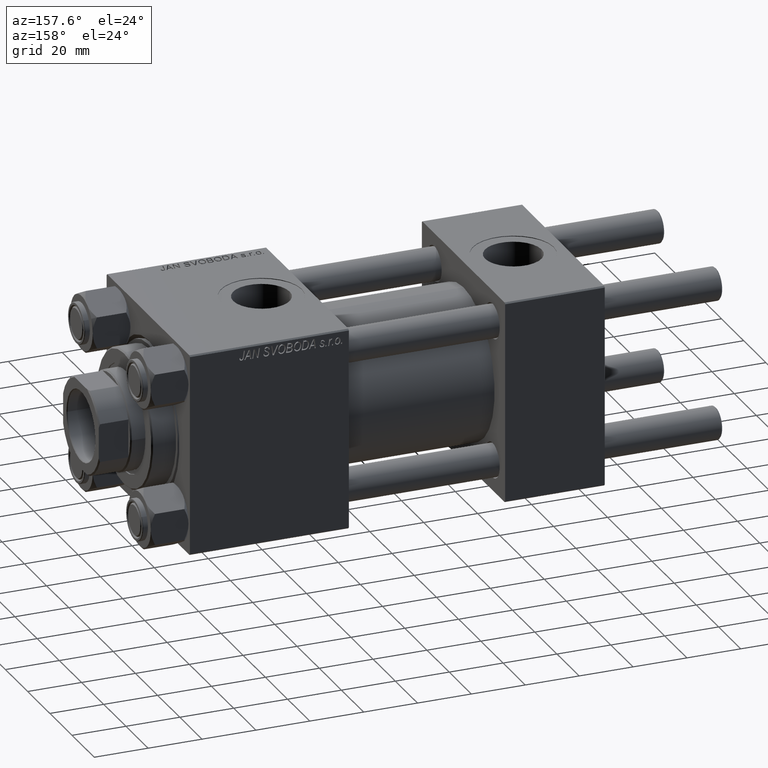
[diagram: clean part render]
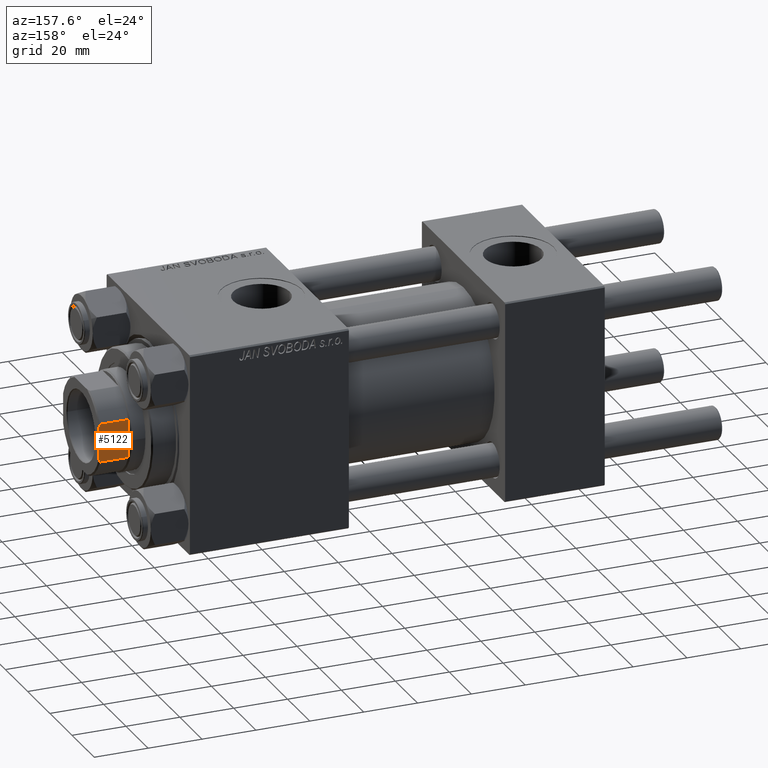
[diagram: same view with one face highlighted and labeled with its STEP entity id]
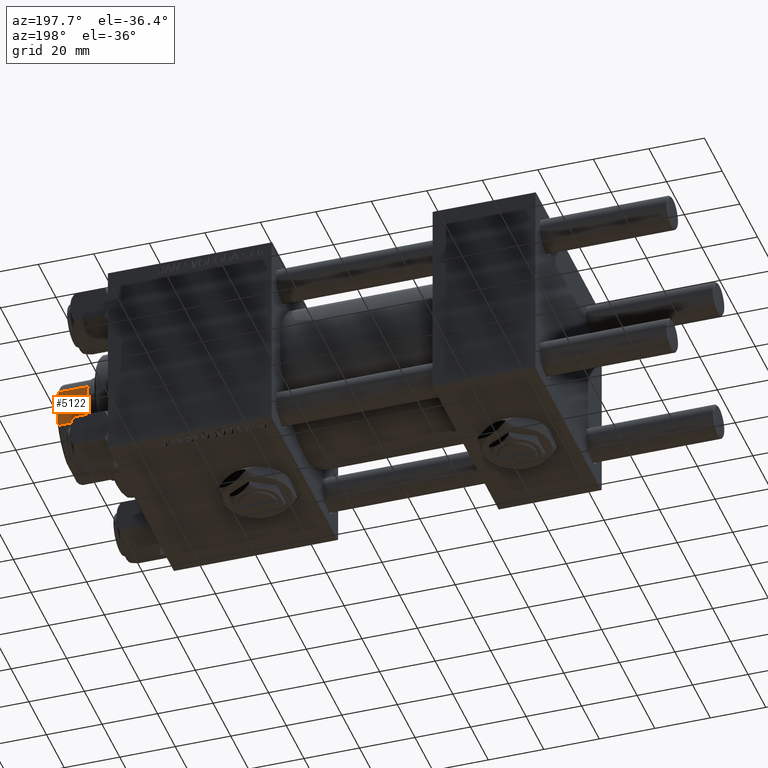
[diagram: same view with one face highlighted and labeled with its STEP entity id]
A machine part, auxiliary view. The second image highlights one B-rep face of the part: STEP entity #5122.
A second angle (auxiliary view) of the same face is appended — the face is thin or edge-on in the first view.
In plain terms, the highlighted planar face has unit normal (-0, -1, -0).
Its self-contained STEP definition (entity closure, byte-faithful):
#66 = ORIENTED_EDGE ( 'NONE', *, *, #37436, .T. ) ;
#587 = EDGE_CURVE ( 'NONE', #30240, #14228, #47034, .T. ) ;
#1814 = CARTESIAN_POINT ( 'NONE',  ( -15.99999999999999645, 7.088723439378923352, 141.5000000000000284 ) ) ;
#2242 = CARTESIAN_POINT ( 'NONE',  ( -16.00000000000000000, 16.00000000000000000, 131.0000000000000000 ) ) ;
#2921 = CARTESIAN_POINT ( 'NONE',  ( -16.00000000000000000, -7.088723439378919799, 131.0000000000000284 ) ) ;
#3818 = DIRECTION ( 'NONE',  ( -0.000000000000000000, -0.000000000000000000, 1.000000000000000000 ) ) ;
#4080 = CARTESIAN_POINT ( 'NONE',  ( -16.00000000000000000, -7.088723439378919799, 141.5000000000000284 ) ) ;
#4337 = FACE_OUTER_BOUND ( 'NONE', #23953, .T. ) ;
#5122 = ADVANCED_FACE ( 'NONE', ( #4337 ), #48583, .F. ) ;
#5183 = EDGE_CURVE ( 'NONE', #26861, #15334, #45953, .T. ) ;
#5713 = CARTESIAN_POINT ( 'NONE',  ( -16.00000000000000000, 5.744562646538085460, 142.0000000000000284 ) ) ;
#6326 = ORIENTED_EDGE ( 'NONE', *, *, #35107, .T. ) ;
#7667 = CARTESIAN_POINT ( 'NONE',  ( -15.99999999999999645, 7.088723439378926905, 131.0000000000000284 ) ) ;
#11181 = CARTESIAN_POINT ( 'NONE',  ( -15.99999999999999645, 7.088723439378923352, -0.001000000000001000089 ) ) ;
#11556 = B_SPLINE_CURVE_WITH_KNOTS ( 'NONE', 3,
 ( #4080, #20050, #43622, #51732 ),
 .UNSPECIFIED., .F., .F.,
 ( 4, 4 ),
 ( 0.000000000000000000, 0.001434143729551075504 ),
 .UNSPECIFIED. ) ;
#12007 = B_SPLINE_CURVE_WITH_KNOTS ( 'NONE', 3,
 ( #5713, #14088, #38430, #25880 ),
 .UNSPECIFIED., .F., .F.,
 ( 4, 4 ),
 ( 8.673617379884035472E-19, 0.001434143729551021944 ),
 .UNSPECIFIED. ) ;
#13319 = DIRECTION ( 'NONE',  ( -0.000000000000000000, -0.000000000000000000, 1.000000000000000000 ) ) ;
#14088 = CARTESIAN_POINT ( 'NONE',  ( -16.00000000000000000, 6.197659614356096469, 141.8468915343184165 ) ) ;
#14228 = VERTEX_POINT ( 'NONE', #1814 ) ;
#15334 = VERTEX_POINT ( 'NONE', #27191 ) ;
#20050 = CARTESIAN_POINT ( 'NONE',  ( -16.00000000000000000, -6.645462757301120682, 141.6795515649600077 ) ) ;
#20916 = LINE ( 'NONE', #49194, #42244 ) ;
#21351 = CARTESIAN_POINT ( 'NONE',  ( -16.00000000000000000, 16.00000000000000000, 142.0000000000000284 ) ) ;
#23049 = VERTEX_POINT ( 'NONE', #25693 ) ;
#23275 = EDGE_CURVE ( 'NONE', #32903, #23049, #20916, .T. ) ;
#23953 = EDGE_LOOP ( 'NONE', ( #51757, #6326, #42938, #35867, #47469, #66 ) ) ;
#24770 = DIRECTION ( 'NONE',  ( -0.000000000000000000, 0.000000000000000000, -1.000000000000000000 ) ) ;
#25693 = CARTESIAN_POINT ( 'NONE',  ( -16.00000000000000000, -7.088723439378919799, 141.5000000000000284 ) ) ;
#25880 = CARTESIAN_POINT ( 'NONE',  ( -15.99999999999999645, 7.088723439378923352, 141.5000000000000284 ) ) ;
#26861 = VERTEX_POINT ( 'NONE', #28166 ) ;
#27191 = CARTESIAN_POINT ( 'NONE',  ( -16.00000000000000000, -5.744562646538022399, 142.0000000000000284 ) ) ;
#28166 = CARTESIAN_POINT ( 'NONE',  ( -16.00000000000000000, 5.744562646538085460, 142.0000000000000284 ) ) ;
#28422 = CARTESIAN_POINT ( 'NONE',  ( -16.00000000000000000, 16.00000000000000000, 142.0000000000000284 ) ) ;
#30240 = VERTEX_POINT ( 'NONE', #7667 ) ;
#32903 = VERTEX_POINT ( 'NONE', #2921 ) ;
#34180 = DIRECTION ( 'NONE',  ( 0.000000000000000000, -1.000000000000000000, 0.000000000000000000 ) ) ;
#35107 = EDGE_CURVE ( 'NONE', #23049, #15334, #11556, .T. ) ;
#35867 = ORIENTED_EDGE ( 'NONE', *, *, #37160, .T. ) ;
#37051 = DIRECTION ( 'NONE',  ( 1.000000000000000000, 0.000000000000000000, -0.000000000000000000 ) ) ;
#37160 = EDGE_CURVE ( 'NONE', #26861, #14228, #12007, .T. ) ;
#37428 = VECTOR ( 'NONE', #34180, 1000.000000000000000 ) ;
#37436 = EDGE_CURVE ( 'NONE', #30240, #32903, #38107, .T. ) ;
#37990 = AXIS2_PLACEMENT_3D ( 'NONE', #28422, #37051, #24770 ) ;
#38107 = LINE ( 'NONE', #2242, #37428 ) ;
#38430 = CARTESIAN_POINT ( 'NONE',  ( -16.00000000000000000, 6.645462757301157097, 141.6795515649600361 ) ) ;
#38535 = VECTOR ( 'NONE', #3818, 1000.000000000000000 ) ;
#38815 = VECTOR ( 'NONE', #41515, 1000.000000000000000 ) ;
#41515 = DIRECTION ( 'NONE',  ( 0.000000000000000000, -1.000000000000000000, 0.000000000000000000 ) ) ;
#42244 = VECTOR ( 'NONE', #13319, 1000.000000000000000 ) ;
#42938 = ORIENTED_EDGE ( 'NONE', *, *, #5183, .F. ) ;
#43622 = CARTESIAN_POINT ( 'NONE',  ( -16.00000000000000000, -6.197659614356052060, 141.8468915343184165 ) ) ;
#45953 = LINE ( 'NONE', #21351, #38815 ) ;
#47034 = LINE ( 'NONE', #11181, #38535 ) ;
#47469 = ORIENTED_EDGE ( 'NONE', *, *, #587, .F. ) ;
#48583 = PLANE ( 'NONE',  #37990 ) ;
#49194 = CARTESIAN_POINT ( 'NONE',  ( -16.00000000000000000, -7.088723439378919799, -0.001000000000001000089 ) ) ;
#51732 = CARTESIAN_POINT ( 'NONE',  ( -16.00000000000000000, -5.744562646538022399, 142.0000000000000284 ) ) ;
#51757 = ORIENTED_EDGE ( 'NONE', *, *, #23275, .T. ) ;